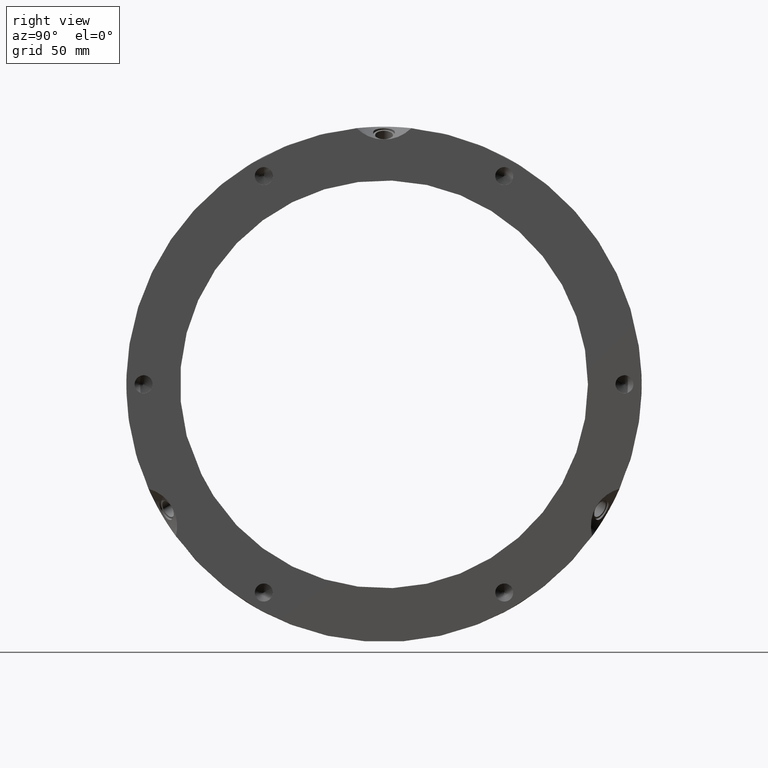
[diagram: clean part render]
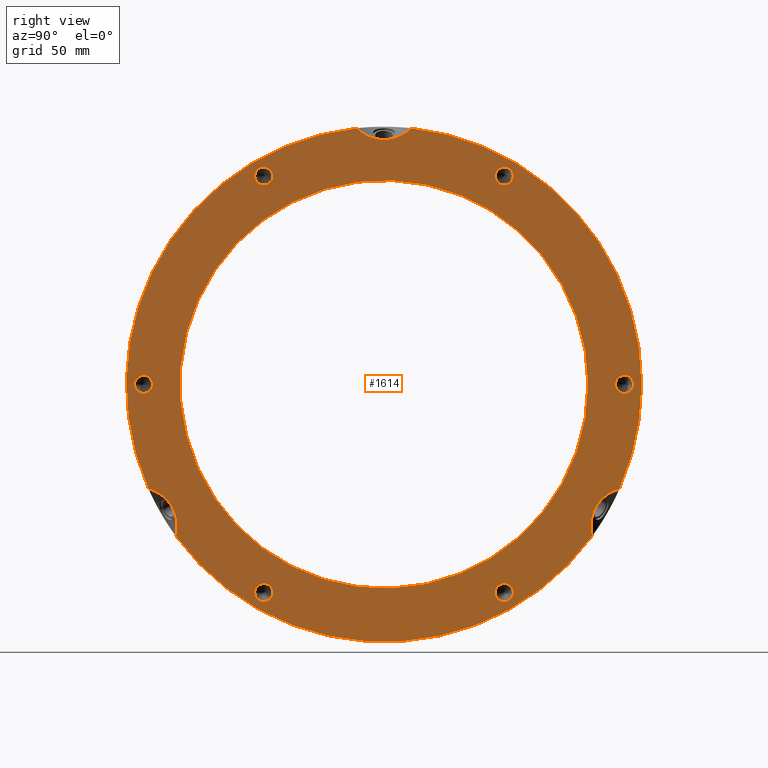
[diagram: same view with one face highlighted and labeled with its STEP entity id]
A machine part, right view. The second image highlights one B-rep face of the part: STEP entity #1614.
In plain terms, the highlighted planar face has unit normal (1, 0, 0).
Its self-contained STEP definition (entity closure, byte-faithful):
#132=CARTESIAN_POINT('',(31.999999999999975,52.362693304105392,94.894845223857118));
#133=VERTEX_POINT('',#132);
#134=CARTESIAN_POINT('',(31.999999999999975,56.000000000000043,96.994845223857141));
#135=DIRECTION('',(-1.0,0.0,0.0));
#136=DIRECTION('',(0.0,-0.866025403784439,-0.499999999999999));
#137=AXIS2_PLACEMENT_3D('',#134,#135,#136);
#138=CIRCLE('',#137,4.2);
#139=EDGE_CURVE('',#133,#133,#138,.T.);
#286=CARTESIAN_POINT('',(31.999999999999975,108.36269330410538,2.100000000000009));
#287=VERTEX_POINT('',#286);
#288=CARTESIAN_POINT('',(31.999999999999975,112.00000000000003,8.881784E-015));
#289=DIRECTION('',(-1.0,0.0,0.0));
#290=DIRECTION('',(0.0,-0.866025403784438,0.5));
#291=AXIS2_PLACEMENT_3D('',#288,#289,#290);
#292=CIRCLE('',#291,4.200000000000001);
#293=EDGE_CURVE('',#287,#287,#292,.T.);
#440=CARTESIAN_POINT('',(31.999999999999975,56.00000000000005,-92.794845223857138));
#441=VERTEX_POINT('',#440);
#442=CARTESIAN_POINT('',(31.999999999999975,56.00000000000005,-96.994845223857141));
#443=DIRECTION('',(-1.0,0.0,0.0));
#444=DIRECTION('',(0.0,0.0,1.0));
#445=AXIS2_PLACEMENT_3D('',#442,#443,#444);
#446=CIRCLE('',#445,4.200000000000001);
#447=EDGE_CURVE('',#441,#441,#446,.T.);
#594=CARTESIAN_POINT('',(31.999999999999975,-52.362693304105335,-94.89484522385716));
#595=VERTEX_POINT('',#594);
#596=CARTESIAN_POINT('',(31.999999999999975,-55.999999999999986,-96.994845223857169));
#597=DIRECTION('',(-1.0,0.0,0.0));
#598=DIRECTION('',(0.0,0.866025403784439,0.5));
#599=AXIS2_PLACEMENT_3D('',#596,#597,#598);
#600=CIRCLE('',#599,4.199999999999999);
#601=EDGE_CURVE('',#595,#595,#600,.T.);
#748=CARTESIAN_POINT('',(31.999999999999975,-108.36269330410538,-2.100000000000044));
#749=VERTEX_POINT('',#748);
#750=CARTESIAN_POINT('',(31.999999999999975,-112.00000000000003,-4.440892E-014));
#751=DIRECTION('',(-1.0,0.0,0.0));
#752=DIRECTION('',(0.0,0.866025403784439,-0.5));
#753=AXIS2_PLACEMENT_3D('',#750,#751,#752);
#754=CIRCLE('',#753,4.2);
#755=EDGE_CURVE('',#749,#749,#754,.T.);
#902=CARTESIAN_POINT('',(31.999999999999975,-56.000000000000057,92.794845223857124));
#903=VERTEX_POINT('',#902);
#904=CARTESIAN_POINT('',(31.999999999999975,-56.000000000000057,96.994845223857112));
#905=DIRECTION('',(-1.0,0.0,0.0));
#906=DIRECTION('',(0.0,0.0,-1.0));
#907=AXIS2_PLACEMENT_3D('',#904,#905,#906);
#908=CIRCLE('',#907,4.2);
#909=EDGE_CURVE('',#903,#903,#908,.T.);
#1125=CARTESIAN_POINT('',(31.999999999999975,96.948914571262094,-70.717098098367458));
#1126=VERTEX_POINT('',#1125);
#1127=CARTESIAN_POINT('',(31.999999999999975,109.71726072073344,-48.601673838856669));
#1128=VERTEX_POINT('',#1127);
#1129=CARTESIAN_POINT('',(31.999999999999975,118.72689603142598,-68.547005383792595));
#1130=DIRECTION('',(-1.0,0.0,0.0));
#1131=DIRECTION('',(0.0,-0.866025403784438,0.5));
#1132=AXIS2_PLACEMENT_3D('',#1129,#1130,#1131);
#1133=ELLIPSE('',#1132,23.094010767585029,19.999999999999996);
#1134=EDGE_CURVE('',#1126,#1128,#1133,.T.);
#1296=CARTESIAN_POINT('',(31.999999999999975,-109.71726072073352,-48.601673838856463));
#1297=VERTEX_POINT('',#1296);
#1298=CARTESIAN_POINT('',(31.999999999999979,-96.948914571262179,-70.717098098367345));
#1299=VERTEX_POINT('',#1298);
#1300=CARTESIAN_POINT('',(31.999999999999975,-118.72689603142604,-68.547005383792495));
#1301=DIRECTION('',(-1.0,0.0,0.0));
#1302=DIRECTION('',(0.0,0.866025403784439,0.5));
#1303=AXIS2_PLACEMENT_3D('',#1300,#1301,#1302);
#1304=ELLIPSE('',#1303,23.094010767585026,19.999999999999996);
#1305=EDGE_CURVE('',#1297,#1299,#1304,.T.);
#1375=CARTESIAN_POINT('',(31.999999999999975,0.0,0.0));
#1376=DIRECTION('',(1.0,0.0,0.0));
#1377=DIRECTION('',(0.0,1.0,0.0));
#1378=AXIS2_PLACEMENT_3D('',#1375,#1376,#1377);
#1379=CIRCLE('',#1378,120.0);
#1380=EDGE_CURVE('',#1299,#1126,#1379,.T.);
#1383=CARTESIAN_POINT('',(31.999999999999975,-12.768346149471334,119.31877193722403));
#1384=VERTEX_POINT('',#1383);
#1385=CARTESIAN_POINT('',(31.999999999999975,0.0,0.0));
#1386=DIRECTION('',(1.0,0.0,0.0));
#1387=DIRECTION('',(0.0,1.0,0.0));
#1388=AXIS2_PLACEMENT_3D('',#1385,#1386,#1387);
#1389=CIRCLE('',#1388,120.0);
#1390=EDGE_CURVE('',#1384,#1297,#1389,.T.);
#1392=CARTESIAN_POINT('',(31.999999999999975,12.768346149471334,119.31877193722403));
#1393=VERTEX_POINT('',#1392);
#1415=CARTESIAN_POINT('',(31.999999999999975,0.0,0.0));
#1416=DIRECTION('',(1.0,0.0,0.0));
#1417=DIRECTION('',(0.0,1.0,0.0));
#1418=AXIS2_PLACEMENT_3D('',#1415,#1416,#1417);
#1419=CIRCLE('',#1418,120.0);
#1420=EDGE_CURVE('',#1128,#1393,#1419,.T.);
#1558=CARTESIAN_POINT('',(31.999999999999975,0.0,137.09401076758505));
#1559=DIRECTION('',(-1.0,0.0,0.0));
#1560=DIRECTION('',(0.0,0.0,-1.0));
#1561=AXIS2_PLACEMENT_3D('',#1558,#1559,#1560);
#1562=ELLIPSE('',#1561,23.094010767585029,19.999999999999996);
#1563=EDGE_CURVE('',#1393,#1384,#1562,.T.);
#1572=CARTESIAN_POINT('',(31.999999999999975,107.5,0.0));
#1573=DIRECTION('',(1.0,0.0,0.0));
#1574=DIRECTION('',(0.0,0.0,-1.0));
#1575=AXIS2_PLACEMENT_3D('',#1572,#1573,#1574);
#1576=PLANE('',#1575);
#1577=ORIENTED_EDGE('',*,*,#1134,.T.);
#1578=ORIENTED_EDGE('',*,*,#1420,.T.);
#1579=ORIENTED_EDGE('',*,*,#1563,.T.);
#1580=ORIENTED_EDGE('',*,*,#1390,.T.);
#1581=ORIENTED_EDGE('',*,*,#1305,.T.);
#1582=ORIENTED_EDGE('',*,*,#1380,.T.);
#1583=EDGE_LOOP('',(#1577,#1578,#1579,#1580,#1581,#1582));
#1584=FACE_OUTER_BOUND('',#1583,.T.);
#1585=ORIENTED_EDGE('',*,*,#139,.T.);
#1586=EDGE_LOOP('',(#1585));
#1587=FACE_BOUND('',#1586,.T.);
#1588=ORIENTED_EDGE('',*,*,#293,.T.);
#1589=EDGE_LOOP('',(#1588));
#1590=FACE_BOUND('',#1589,.T.);
#1591=ORIENTED_EDGE('',*,*,#447,.T.);
#1592=EDGE_LOOP('',(#1591));
#1593=FACE_BOUND('',#1592,.T.);
#1594=ORIENTED_EDGE('',*,*,#601,.T.);
#1595=EDGE_LOOP('',(#1594));
#1596=FACE_BOUND('',#1595,.T.);
#1597=ORIENTED_EDGE('',*,*,#755,.T.);
#1598=EDGE_LOOP('',(#1597));
#1599=FACE_BOUND('',#1598,.T.);
#1600=ORIENTED_EDGE('',*,*,#909,.T.);
#1601=EDGE_LOOP('',(#1600));
#1602=FACE_BOUND('',#1601,.T.);
#1603=CARTESIAN_POINT('',(31.999999999999979,95.0,0.0));
#1604=VERTEX_POINT('',#1603);
#1605=CARTESIAN_POINT('',(31.999999999999979,0.0,0.0));
#1606=DIRECTION('',(1.0,0.0,0.0));
#1607=DIRECTION('',(0.0,1.0,0.0));
#1608=AXIS2_PLACEMENT_3D('',#1605,#1606,#1607);
#1609=CIRCLE('',#1608,95.0);
#1610=EDGE_CURVE('',#1604,#1604,#1609,.T.);
#1611=ORIENTED_EDGE('',*,*,#1610,.F.);
#1612=EDGE_LOOP('',(#1611));
#1613=FACE_BOUND('',#1612,.T.);
#1614=ADVANCED_FACE('',(#1584,#1587,#1590,#1593,#1596,#1599,#1602,#1613),#1576,.T.);